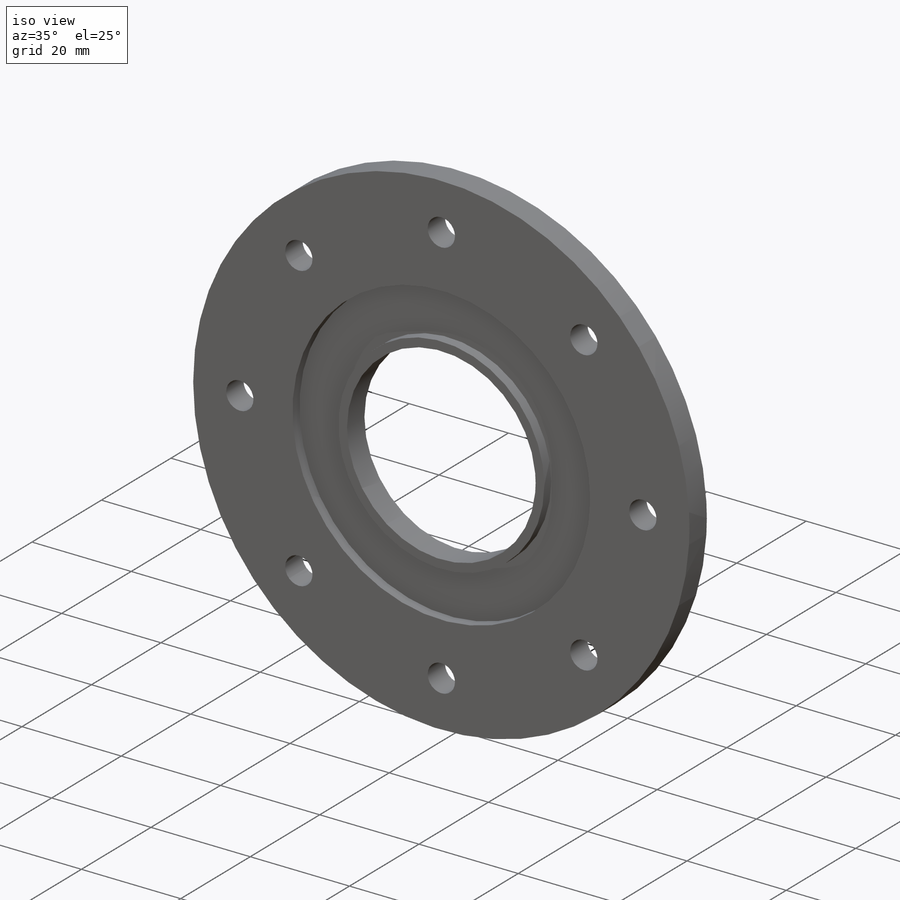
[diagram: iso view]
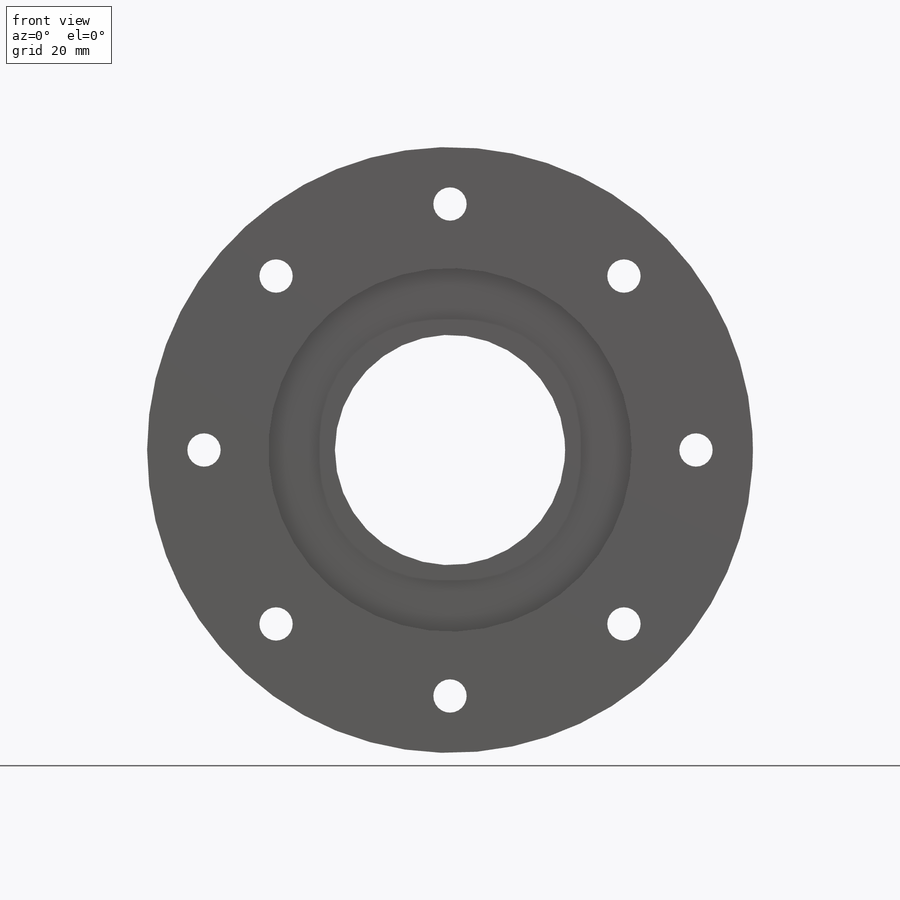
[diagram: front view]
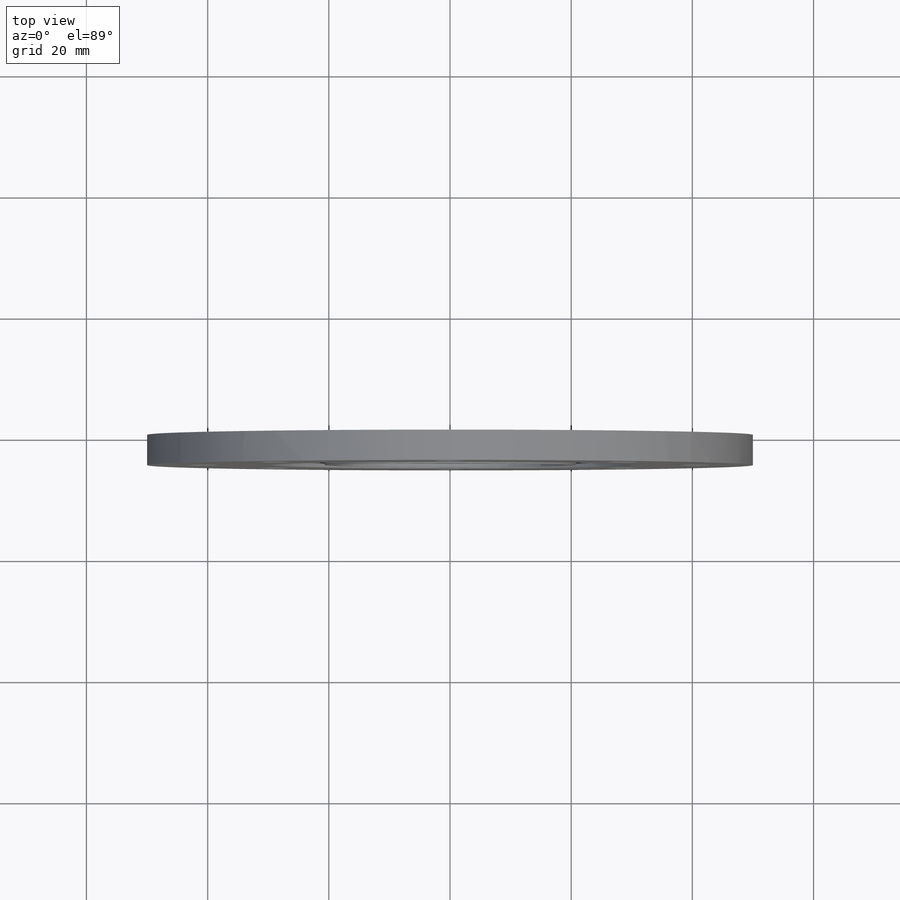
[diagram: top view]
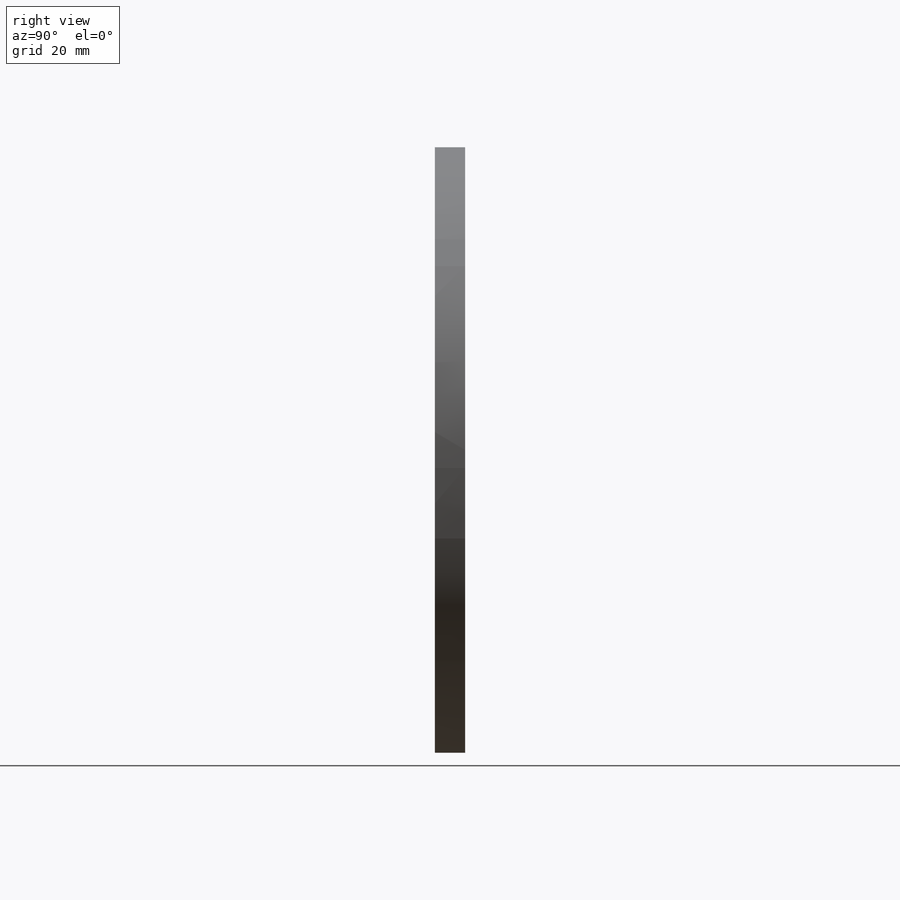
[diagram: right view]
SOLIDWORKS PART (.sldprt)
format: sldprt  version: not decoded by parser v0  size: 179,200 bytes
history: native  units: mm
features: plane x3, sketch x3, cut_extrude x2, material x1, extrude x1 (+9 scaffold rows collapsed)
feature tree (19):
  scaffold x9  (default folders/planes/origin — collapsed)
  material  "Material <sin especificar>"
  plane  "Alzado"
  plane  "Planta"
  plane  "Vista lateral"
  sketch  "Croquis1"  dims[D1=100.0mm D2=38.0mm]
  extrude  "Saliente-Extruir1"  Depth=5mm
  sketch  "Croquis4"  dims[D1=41.5mm D2=60.0mm]
  cut_extrude  "Cortar-Extruir1"  Depth=2mm
  sketch  "Croquis5"  dims[D2=5.5mm D1=8.0]
  cut_extrude  "Cortar-Extruir2"  [1 undecoded]
decode coverage: 5 of 6 modeling features carry decoded parameters
note: 1 parameter value undecoded
note: suppression state not decoded; provenance and decode notes live in map.json
